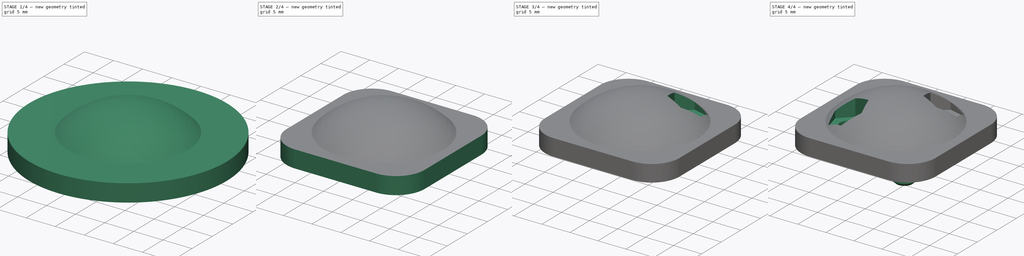
[diagram: build sequence overview — one tinted view per stage of 4, left to right]
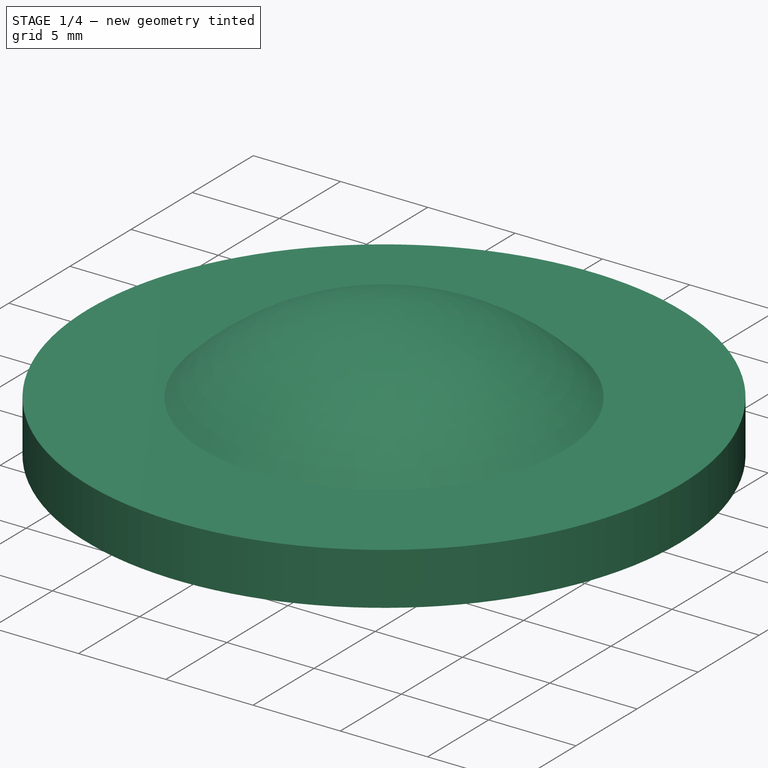
[diagram: stage 1 of 4 — iso view after this stage's code; geometry added in this stage tinted green]
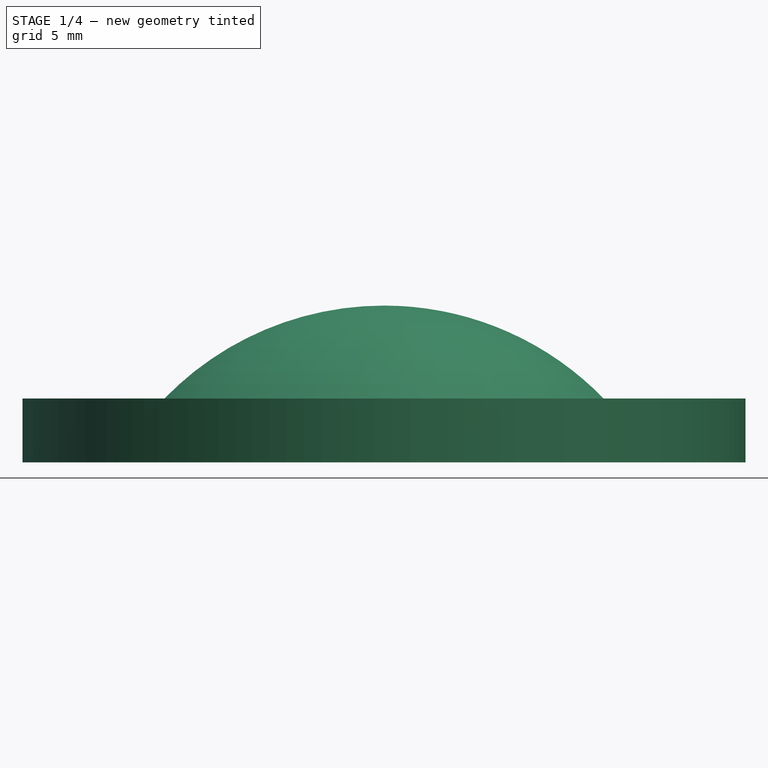
[diagram: stage 1 of 4 — front view after this stage's code; geometry added in this stage tinted green]
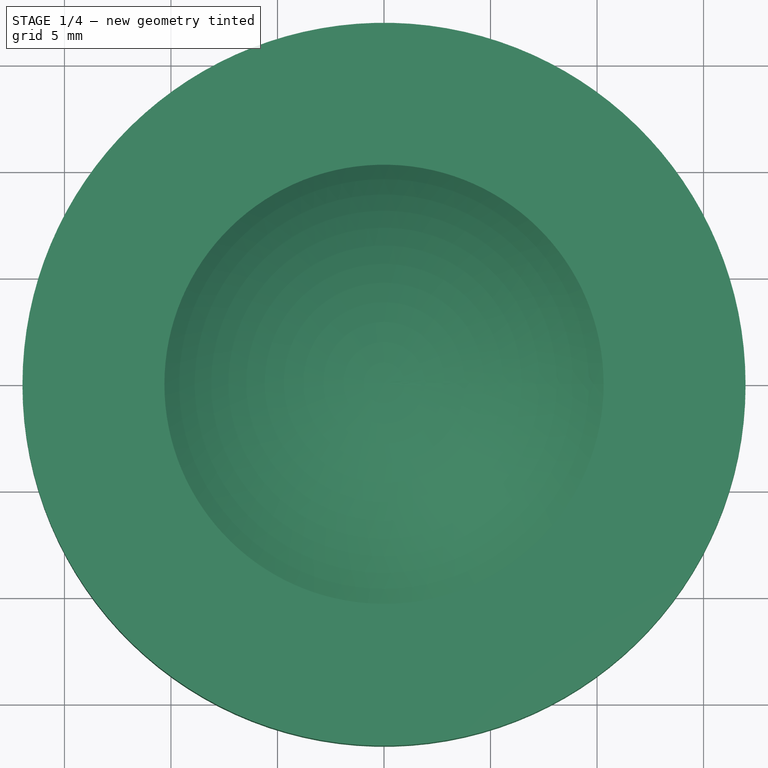
[diagram: stage 1 of 4 — top view after this stage's code; geometry added in this stage tinted green]
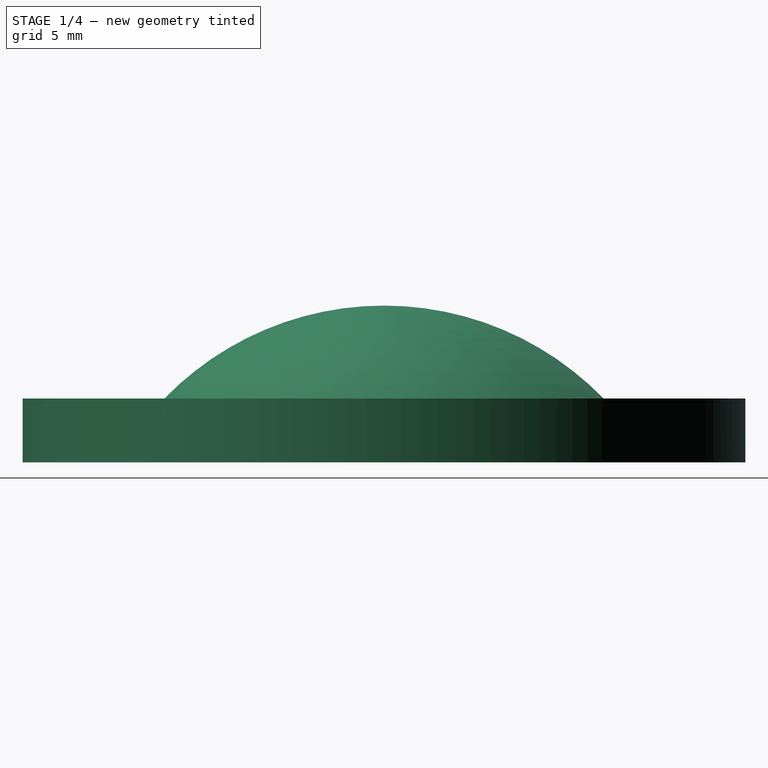
[diagram: stage 1 of 4 — right view after this stage's code; geometry added in this stage tinted green]
FCSTD DOCUMENT  (FreeCAD 0.19R)
Label: sepal
License: All rights reserved
LicenseURL: http://en.wikipedia.org/wiki/All_rights_reserved
objects: Sketcher::SketchObject×6, PartDesign::Revolution×2, PartDesign::Pocket×2, PartDesign::Fillet×1, PartDesign::Hole×1, PartDesign::Pad×1, PartDesign::Chamfer×1, PartDesign::PolarPattern×1, PartDesign::Body×1
note: 24 computed .brp shape members not serialized (recipe doc carries the construction recipe); baked Part::Feature solids carry a one-line shape summary decoded from their .brp

FEATURE [Sketcher::SketchObject] Sketch  label="round_base_sketch"
  FullyConstrained = true
  MapMode = 5
  Placement = pos=(0,0,0) rot=(1,0,0;1.5708rad)
  Support = -> [XZ_Plane]
  sketch-geometry (4):
    g0: LineSegment StartX=0 StartY=0 StartZ=0 EndX=16.9706 EndY=0 EndZ=0
    g1: LineSegment StartX=16.9706 StartY=0 StartZ=0 EndX=16.9706 EndY=3 EndZ=0
    g2: LineSegment StartX=16.9706 StartY=3 StartZ=0 EndX=0 EndY=3 EndZ=0
    g3: LineSegment StartX=0 StartY=3 StartZ=0 EndX=0 EndY=0 EndZ=0
  constraints (11):
    c: Coincident(g0,g1)
    c: Coincident(g1,g2)
    c: Coincident(g2,g3)
    c: Coincident(g3,g0)
    c: Horizontal(g0)
    c: Horizontal(g2)
    c: Vertical(g1)
    c: Vertical(g3)
    c: Coincident(g0,g-1)
    c: Distance(g2) = 16.9706
    c: Distance(g3) = 3
FEATURE [PartDesign::Revolution] Revolution  label="round_base"
  Angle = 360
  Axis = (-3e-16,3e-16,1)
  Base = (0,0,0)
  Placement = pos=(0,0,0) rot=(1,0,0;1.5708rad)
  Profile = -> Sketch
  ReferenceAxis = -> Z_Axis
FEATURE [Sketcher::SketchObject] Sketch001  label="round_arch_sketch"
  ExternalGeometry = -> [Revolution]
  FullyConstrained = true
  MapMode = 5
  Placement = pos=(0,0,0) rot=(1,0,0;1.5708rad)
  Support = -> [XZ_Plane]
  sketch-geometry (4):
    g0: ArcOfCircle CenterX=0 CenterY=-7 CenterZ=0 NormalX=0 NormalY=0 NormalZ=1 AngleXU=0 Radius=14.3614 StartAngle=0.770244 EndAngle=1.5708
    g1: GeomPoint X=7.07107 Y=5.5 Z=0
    g2: LineSegment StartX=10.3078 StartY=3 StartZ=0 EndX=0 EndY=3 EndZ=0
    g3: LineSegment StartX=0 StartY=3 StartZ=0 EndX=9e-16 EndY=7.36141 EndZ=0
  constraints (12):
    c: PointOnObject(g0,g-2)
    c: PointOnObject(g0,g-2)
    c: Distance(g-1,g0) = 7
    c: PointOnObject(g1,g0)
    c: DistanceX(g-2,g1) = 7.07107
    c: PointOnObject(g0,g-3)
    c: Distance(g1,g-3) = 2.5
    c: Coincident(g2,g0)
    c: PointOnObject(g2,g-2)
    c: Horizontal(g2)
    c: Coincident(g3,g2)
    c: Coincident(g3,g0)
FEATURE [PartDesign::Revolution] Revolution001  label="round_arch"
  Angle = 360
  Axis = (-3e-16,3e-16,1)
  Base = (0,0,0)
  BaseFeature = -> Revolution
  Placement = pos=(0,0,0) rot=(1,0,0;1.5708rad)
  Profile = -> Sketch001
  ReferenceAxis = -> Z_Axis
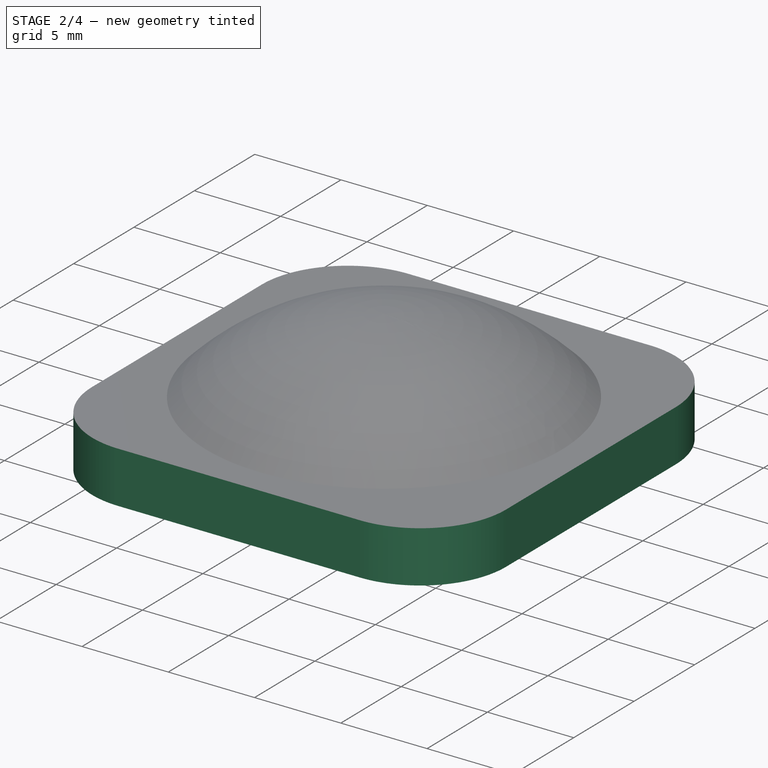
[diagram: stage 2 of 4 — iso view after this stage's code; geometry added in this stage tinted green]
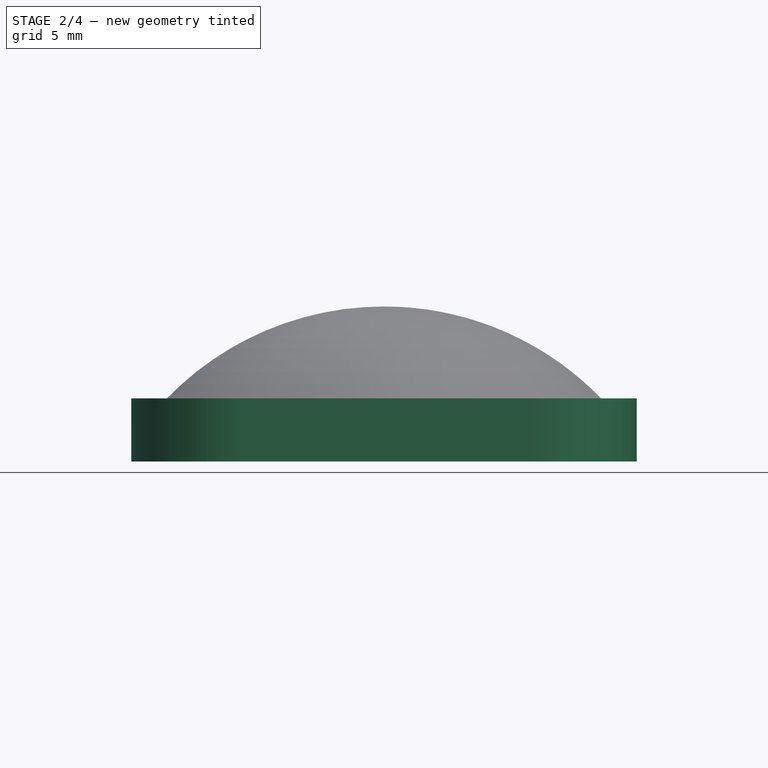
[diagram: stage 2 of 4 — front view after this stage's code; geometry added in this stage tinted green]
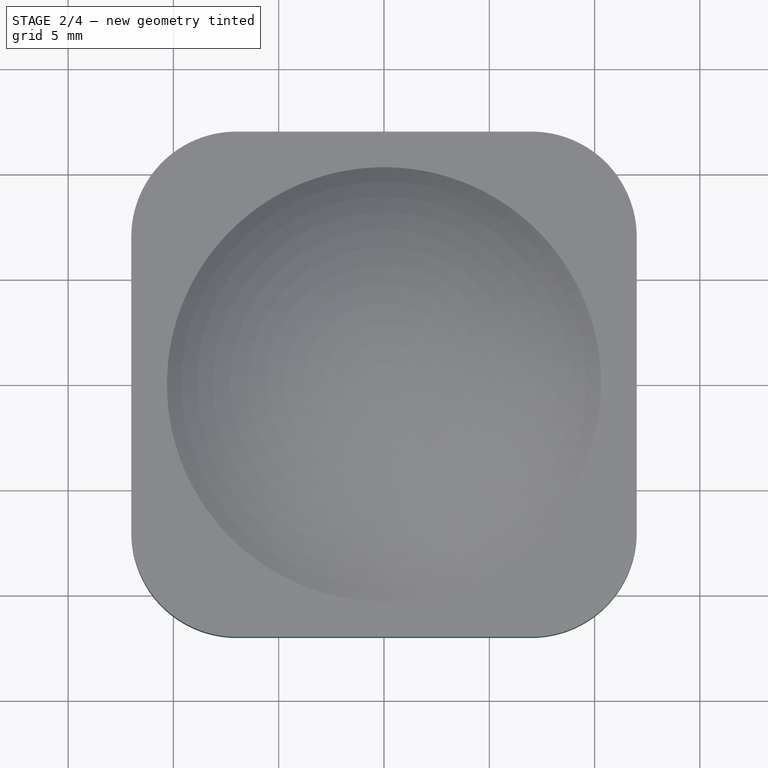
[diagram: stage 2 of 4 — top view after this stage's code; geometry added in this stage tinted green]
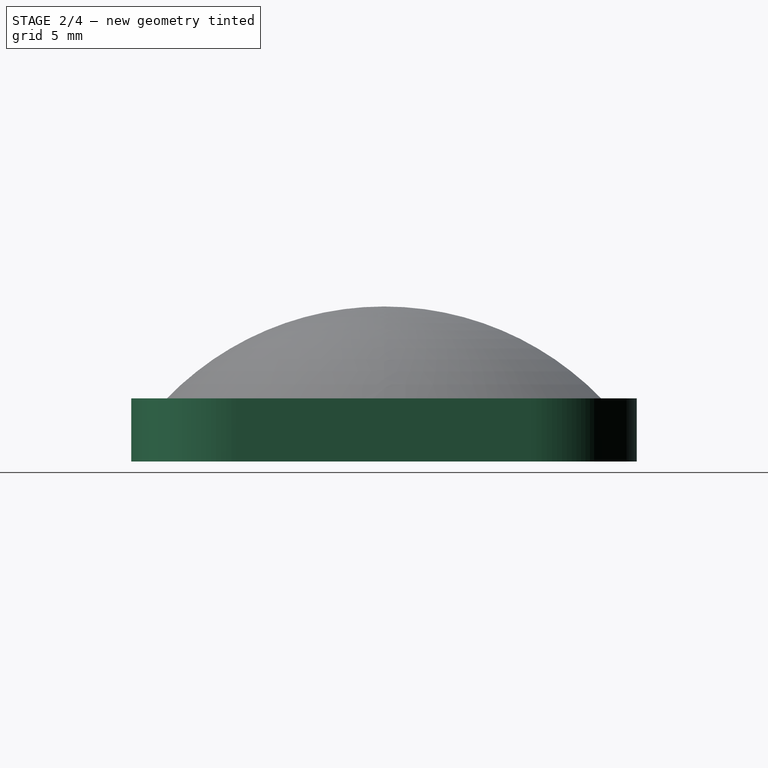
[diagram: stage 2 of 4 — right view after this stage's code; geometry added in this stage tinted green]
FEATURE [Sketcher::SketchObject] Sketch002  label="square_trimmer_sketch"
  FullyConstrained = true
  MapMode = 5
  Placement = pos=(0,0,0) rot=(1,0,0;3.14159rad)
  Support = -> [Revolution001]
  sketch-geometry (5):
    g0: LineSegment StartX=-12 StartY=-12 StartZ=0 EndX=12 EndY=-12 EndZ=0
    g1: LineSegment StartX=12 StartY=-12 StartZ=0 EndX=12 EndY=12 EndZ=0
    g2: LineSegment StartX=12 StartY=12 StartZ=0 EndX=-12 EndY=12 EndZ=0
    g3: LineSegment StartX=-12 StartY=12 StartZ=0 EndX=-12 EndY=-12 EndZ=0
    g4: Circle CenterX=0 CenterY=0 CenterZ=0 NormalX=0 NormalY=0 NormalZ=1 AngleXU=0 Radius=30
  constraints (13):
    c: Coincident(g0,g1)
    c: Coincident(g1,g2)
    c: Coincident(g2,g3)
    c: Coincident(g3,g0)
    c: Horizontal(g0)
    c: Horizontal(g2)
    c: Vertical(g1)
    c: Vertical(g3)
    c: Symmetric(g1,g0,g-1)
    c: Distance(g2) = 24
    c: Distance(g3) = 24
    c: Coincident(g4,g-1)
    c: Radius(g4) = 30
FEATURE [PartDesign::Pocket] Pocket  label="square_trimmer"
  BaseFeature = -> Revolution001
  Length = 5
  Length2 = 100
  Placement = pos=(0,0,0) rot=(1,0,0;1.5708rad)
  Profile = -> Sketch002
  Type = 1
FEATURE [PartDesign::Fillet] Fillet  label="corner_fillet"
  Base = -> Pocket [Edge7,Edge5,Edge11,Edge9]
  BaseFeature = -> Pocket
  Placement = pos=(0,0,0) rot=(1,0,0;1.5708rad)
  Radius = 5
  SupportTransform = false
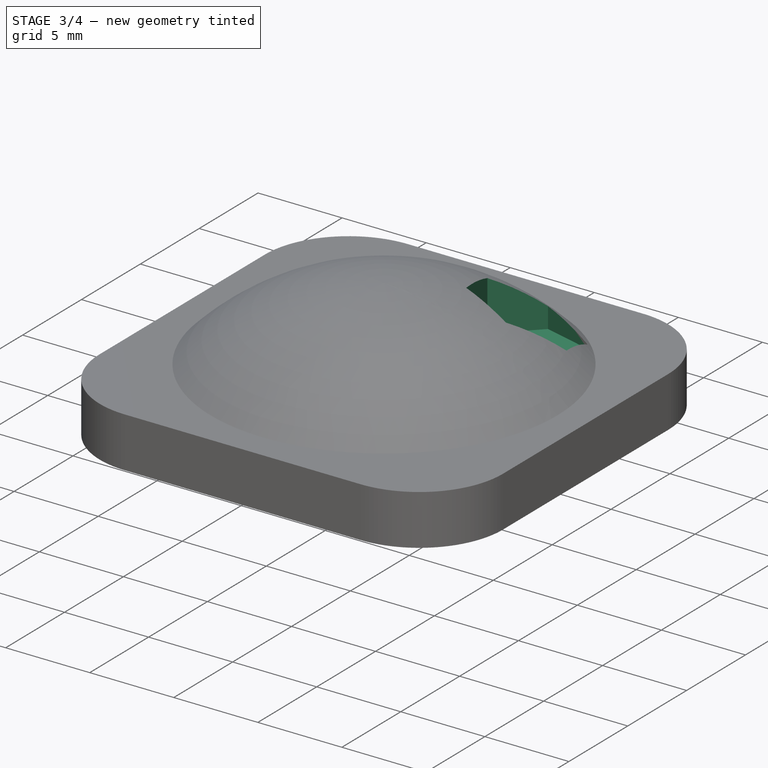
[diagram: stage 3 of 4 — iso view after this stage's code; geometry added in this stage tinted green]
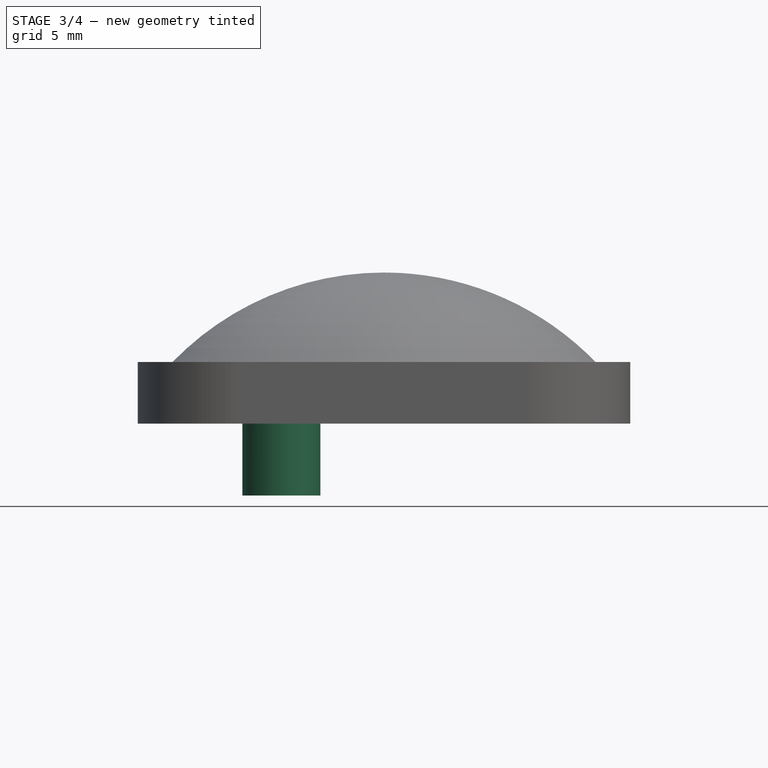
[diagram: stage 3 of 4 — front view after this stage's code; geometry added in this stage tinted green]
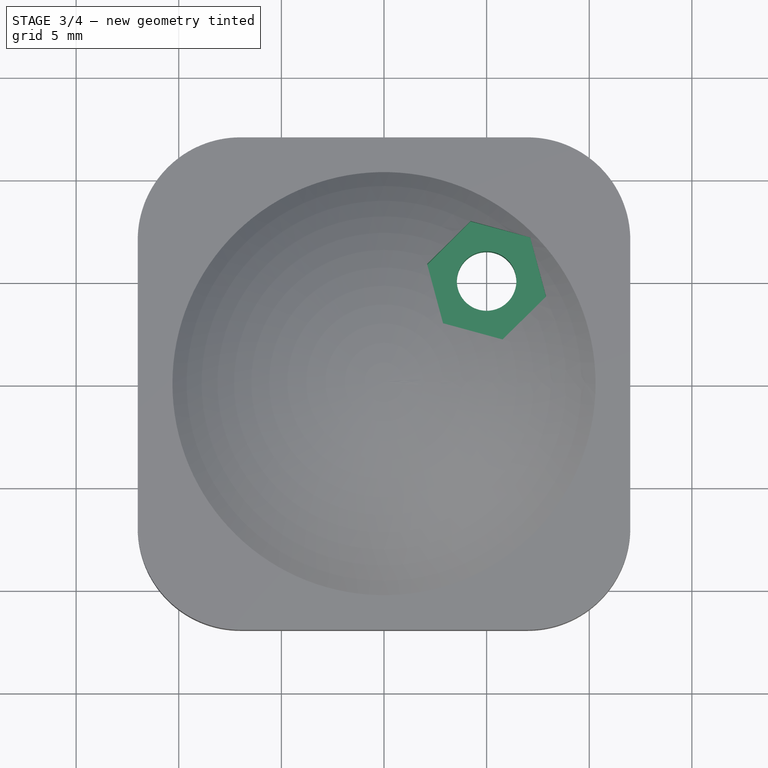
[diagram: stage 3 of 4 — top view after this stage's code; geometry added in this stage tinted green]
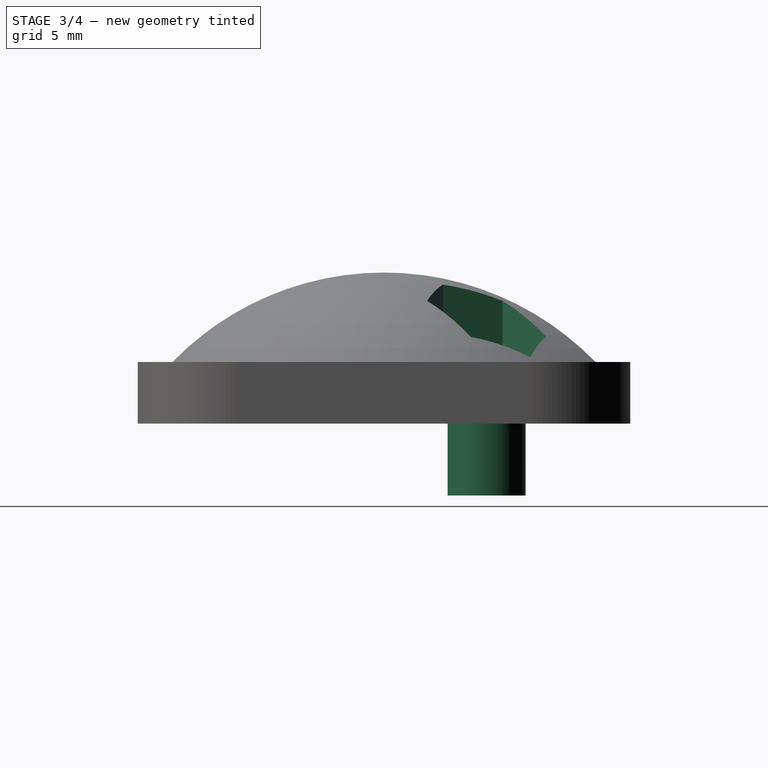
[diagram: stage 3 of 4 — right view after this stage's code; geometry added in this stage tinted green]
FEATURE [Sketcher::SketchObject] Sketch003  label="M25_hex_countersink_sketch"
  FullyConstrained = true
  MapMode = 5
  Placement = pos=(-1e-15,5e-15,3) rot=(0,0,1;3.14159rad)
  Support = -> [Fillet]
  sketch-geometry (8):
    g0: LineSegment StartX=-4.22297 StartY=-7.89992 StartZ=0 EndX=-2.10008 EndY=-5.77703 EndZ=0
    g1: LineSegment StartX=-2.10008 StartY=-5.77703 StartZ=0 EndX=-2.87711 EndY=-2.87711 EndZ=0
    g2: LineSegment StartX=-2.87711 StartY=-2.87711 StartZ=0 EndX=-5.77703 EndY=-2.10008 EndZ=0
    g3: LineSegment StartX=-5.77703 StartY=-2.10008 StartZ=0 EndX=-7.89992 EndY=-4.22297 EndZ=0
    g4: LineSegment StartX=-7.89992 StartY=-4.22297 StartZ=0 EndX=-7.12289 EndY=-7.12289 EndZ=0
    g5: LineSegment StartX=-7.12289 StartY=-7.12289 StartZ=0 EndX=-4.22297 EndY=-7.89992 EndZ=0
    g6: Circle CenterX=-5 CenterY=-5 CenterZ=0 NormalX=0 NormalY=0 NormalZ=1 AngleXU=0 Radius=3.00222
    g7: LineSegment StartX=-7.12289 StartY=-7.12289 StartZ=0 EndX=-2.87711 EndY=-2.87711 EndZ=0
  constraints (19):
    c: Coincident(g0,g1)
    c: Coincident(g1,g2)
    c: Coincident(g2,g3)
    c: Coincident(g3,g4)
    c: Coincident(g4,g5)
    c: Coincident(g5,g0)
    c: Equal(g0, g1-g5) x5
    c: PointOnObject(g0,g6)
    c: PointOnObject(g1,g6)
    c: PointOnObject(g2,g6)
    c: PointOnObject(g3,g6)
    c: PointOnObject(g4,g6)
    c: PointOnObject(g5,g6)
    c: DistanceX(g-2,g6) = -5
    c: DistanceY(g-1,g6) = -5
    c: Coincident(g7,g4)
    c: Coincident(g7,g1)
    c: Angle(g7,g-1) = 2.35619
    c: Distance(g2,g4) = 5.2
FEATURE [PartDesign::Pocket] Pocket001  label="M25_hex_countersink"
  BaseFeature = -> Fillet
  Length = 5
  Length2 = 100
  Placement = pos=(0,0,0) rot=(1,0,0;1.5708rad)
  Profile = -> Sketch003
  Reversed = true
  Type = 1
FEATURE [Sketcher::SketchObject] Sketch004  label="dowel_pin_sketch"
  FullyConstrained = true
  MapMode = 5
  Placement = pos=(0,0,0) rot=(1,0,0;3.14159rad)
  Support = -> [Pocket001]
  sketch-geometry (1):
    g0: Circle CenterX=-5 CenterY=-5 CenterZ=0 NormalX=0 NormalY=0 NormalZ=1 AngleXU=0 Radius=1.9
  constraints (3):
    c: DistanceX(g-2,g0) = -5
    c: DistanceY(g-1,g0) = -5
    c: Radius(g0) = 1.9
FEATURE [Sketcher::SketchObject] Sketch005  label="M2_hole_sketch"
  ExternalGeometry = -> [Pocket001]
  FullyConstrained = true
  MapMode = 5
  Placement = pos=(-1e-15,6.1e-15,3) rot=(0,0,1;3.14159rad)
  Support = -> [Pocket001]
  sketch-geometry (1):
    g0: Circle CenterX=-5 CenterY=-5 CenterZ=0 NormalX=0 NormalY=0 NormalZ=1 AngleXU=0 Radius=1
  constraints (2):
    c: Radius(g0) = 1
    c: Symmetric(g-3,g-4,g0)
FEATURE [PartDesign::Hole] Hole  label="M2_hole"
  BaseFeature = -> Pocket001
  Depth = 25
  DepthType = 1
  Diameter = 2.9
  DrillForDepth = false
  DrillPoint = 1
  DrillPointAngle = 118
  HoleCutCountersinkAngle = 90
  HoleCutCustomValues = false
  HoleCutDepth = 0
  HoleCutDiameter = 6.1
  HoleCutType = 0
  ModelActualThread = false
  Placement = pos=(0,0,0) rot=(1,0,0;1.5708rad)
  Profile = -> Sketch005
  Tapered = false
  TaperedAngle = 90
  ThreadAngle = 0
  ThreadClass = 0
  ThreadCutOffInner = 0
  ThreadCutOffOuter = 0
  ThreadDirection = 0
  ThreadFit = 0
  ThreadPitch = 0
  ThreadSize = 8
  ThreadType = 1
  Threaded = false
FEATURE [PartDesign::Pad] Pad  label="dowel_pin"
  BaseFeature = -> Hole
  Direction = (1,1,1)
  Length = 3.5
  Length2 = 100
  Placement = pos=(0,0,0) rot=(1,0,0;1.5708rad)
  Profile = -> Sketch004
  Type = 0
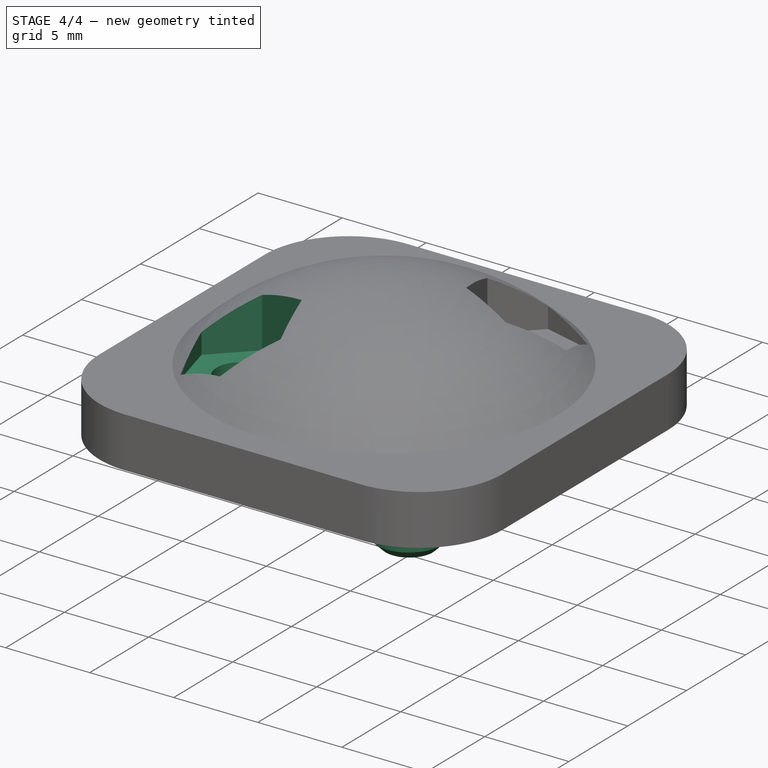
[diagram: stage 4 of 4 — iso view after this stage's code; geometry added in this stage tinted green]
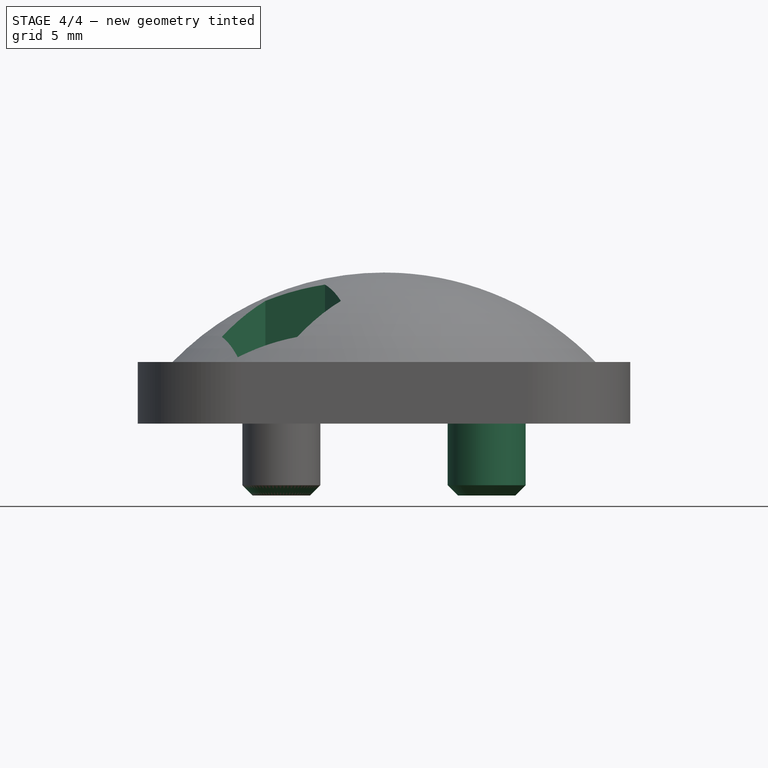
[diagram: stage 4 of 4 — front view after this stage's code; geometry added in this stage tinted green]
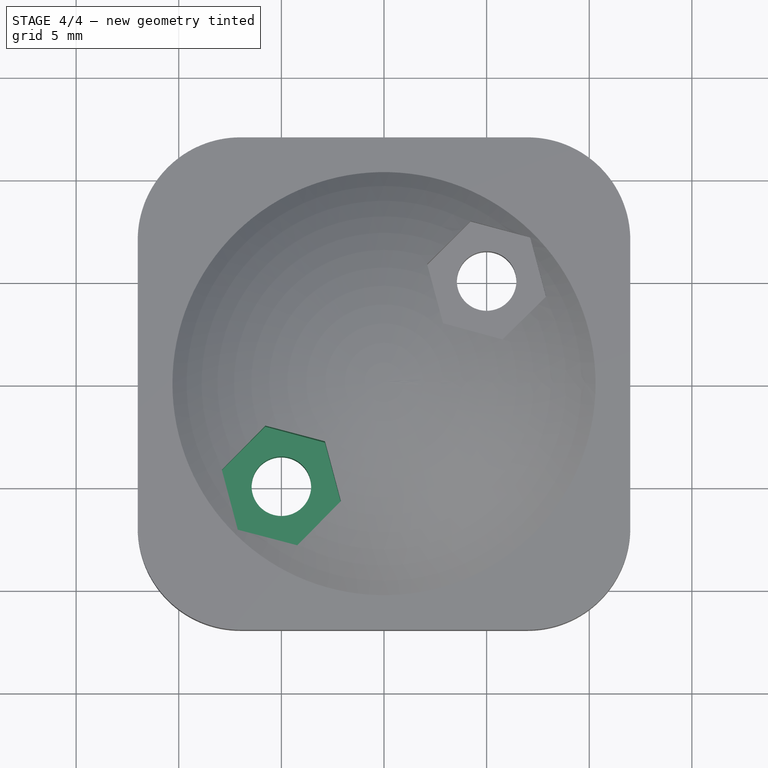
[diagram: stage 4 of 4 — top view after this stage's code; geometry added in this stage tinted green]
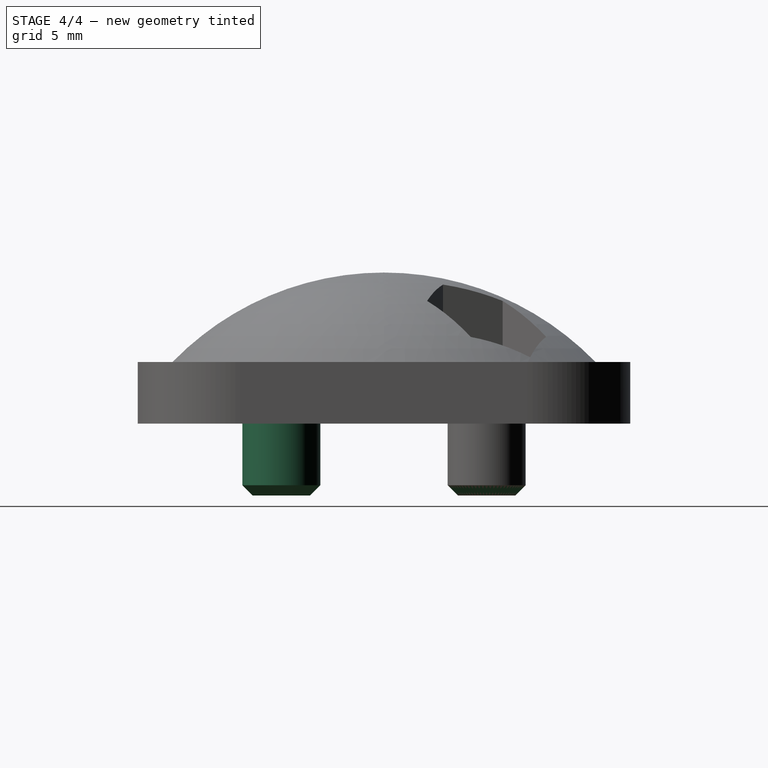
[diagram: stage 4 of 4 — right view after this stage's code; geometry added in this stage tinted green]
FEATURE [PartDesign::Chamfer] Chamfer  label="dowel_pin_chamfer"
  Angle = 45
  Base = -> Pad [Edge30]
  BaseFeature = -> Pad
  ChamferType = 0
  FlipDirection = false
  Placement = pos=(0,0,0) rot=(1,0,0;1.5708rad)
  Size = 0.5
  Size2 = 1
  SupportTransform = false
FEATURE [PartDesign::PolarPattern] PolarPattern  label="connector"
  Angle = 360
  Axis = -> Z_Axis
  BaseFeature = -> Chamfer
  Occurrences = 2
  Originals = -> [Pocket001,Hole,Pad,Chamfer]
  Placement = pos=(0,0,0) rot=(1,0,0;1.5708rad)
FEATURE [PartDesign::Body] Body  label="sepal"
  Group = -> [Sketch,Revolution,Sketch001,Revolution001,Sketch002,Pocket,Fillet,Sketch003,Pocket001,Sketch005,Hole,Sketch004,Pad,Chamfer,PolarPattern]
  Origin = -> Origin
  Placement = pos=(0,0,7) rot=(0,0,1;0rad)
  Tip = -> PolarPattern
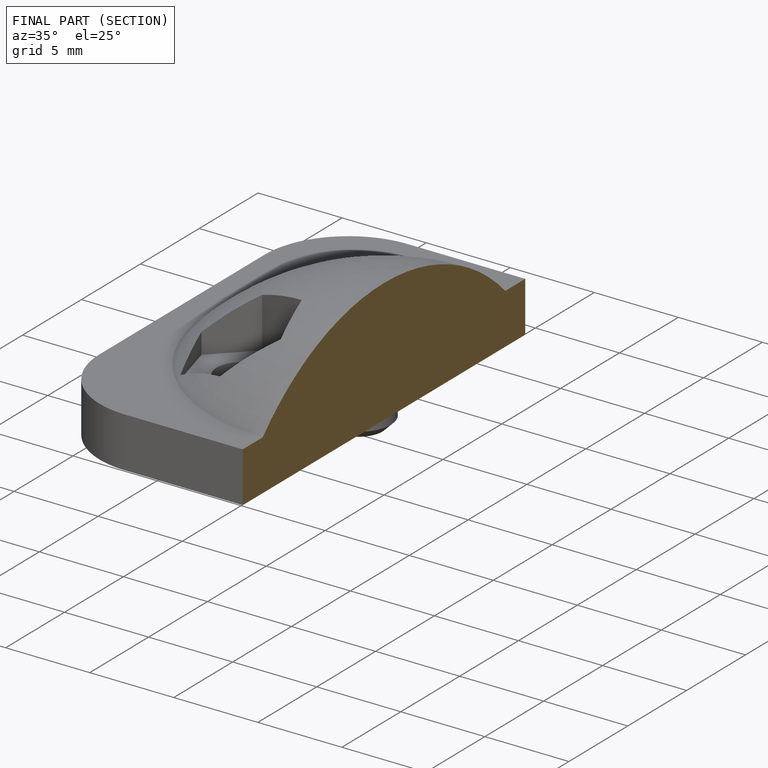
[diagram: finished part — half-section view (interior)]
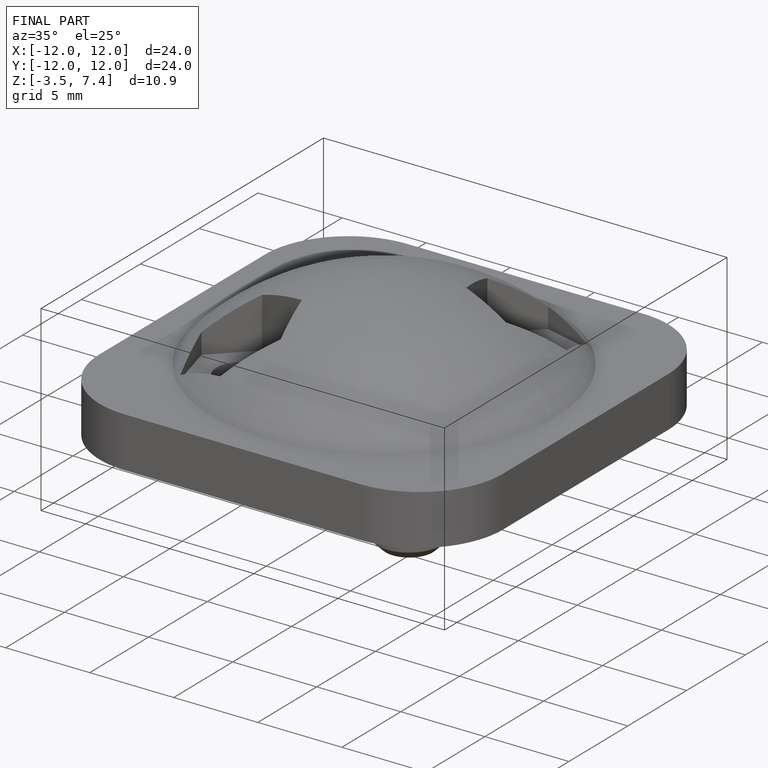
[diagram: finished part — iso view with bounding-box wireframe]
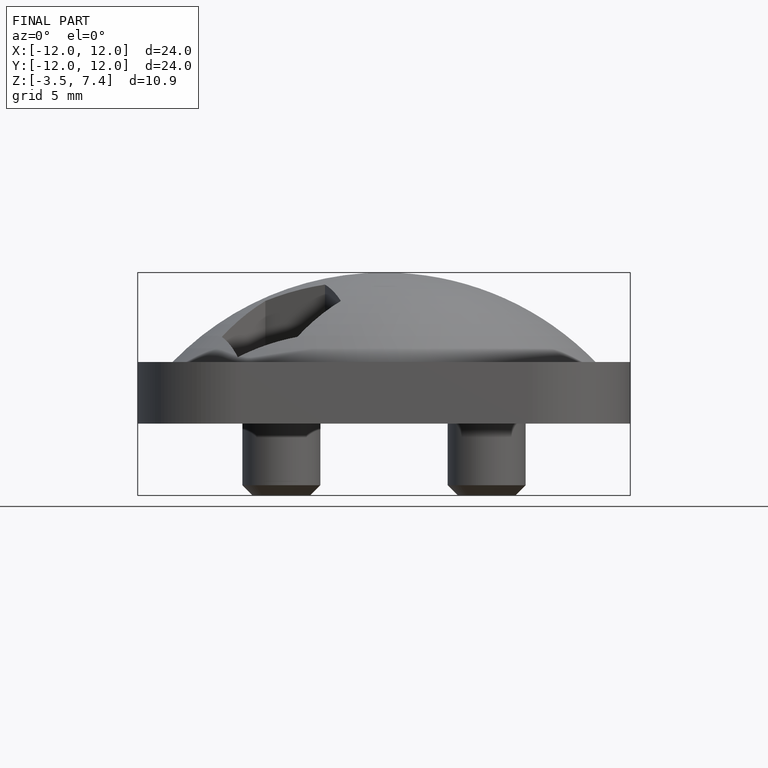
[diagram: finished part — front view with bounding-box wireframe]
